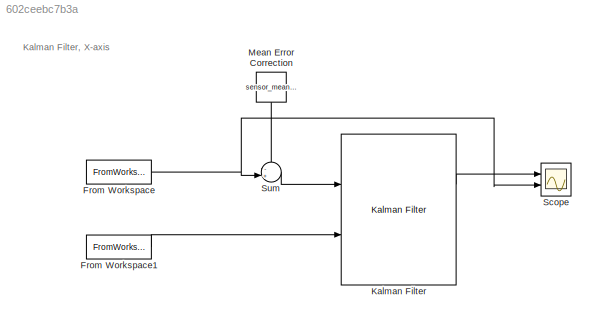
MODEL slx_602ceebc7b3a
KIND model
CONFIG AbsTol = auto
CONFIG EnableMultiTasking = off
CONFIG FixedStep = auto
CONFIG MaxStep = auto
CONFIG MinStep = auto
CONFIG RelTol = 1e-3
CONFIG SampleTimeConstraint = Unconstrained
CONFIG SolverName = VariableStepAuto
CONFIG StartTime = 0.0
CONFIG StopTime = 100
BLOCK [FromWorkspace] From Workspace
  SampleTime = 1/f_s
  VariableName = a_x_in
BLOCK [FromWorkspace] From Workspace1
  SampleTime = 1/f_s
  VariableName = meas_x_in
BLOCK [Reference] Kalman Filter  REF=ctrlSharedLib/Kalman Filter
  Ports = [2, 2]
  SourceBlock = ctrlSharedLib/Kalman Filter
  SourceProductBaseCode = CT,ID
  SourceType = ctrlKalmanFilter
BLOCK [Constant] Mean Error Correction
  NameLocation = left
  Value = sensor_mean(acc_x-1)
BLOCK [Scope] Scope
  Floating = off
  NumInputPorts = 2
  Ports = [2]
  ScopeSpecificationString = Simulink.scopes.TimeScopeBlockCfg('CurrentConfiguration', extmgr.ConfigurationSet(extmgr.Configuration('Core','General UI',true),extmgr.Configuration('Core','Source UI',true),extmgr.Configuration('Sources','WiredSimulink',true),extmgr.Configuration('Visuals','Time Domain',true,'SerializedDisplays',{struct('MinYLimReal','-0.03397','MaxYLimReal','0.04663','YLabelReal','','MinYLimMag','0.00000','MaxY...<+1517ch>
BLOCK [Sum] Sum
  Inputs = -+|
  Ports = [2, 1]
ANNOTATION (root): Kalman Filter, X-axis
LINE From Workspace1:1 -> Kalman Filter:2
NET From Workspace:1 -> Scope:2, Sum:2
LINE Kalman Filter:1 -> Scope:1
LINE Mean Error Correction:1 -> Sum:1
LINE Sum:1 -> Kalman Filter:1
note: NET lines group one-source signal fan-out (src -> all destinations, sorted); 1:1 wires keep LINE
